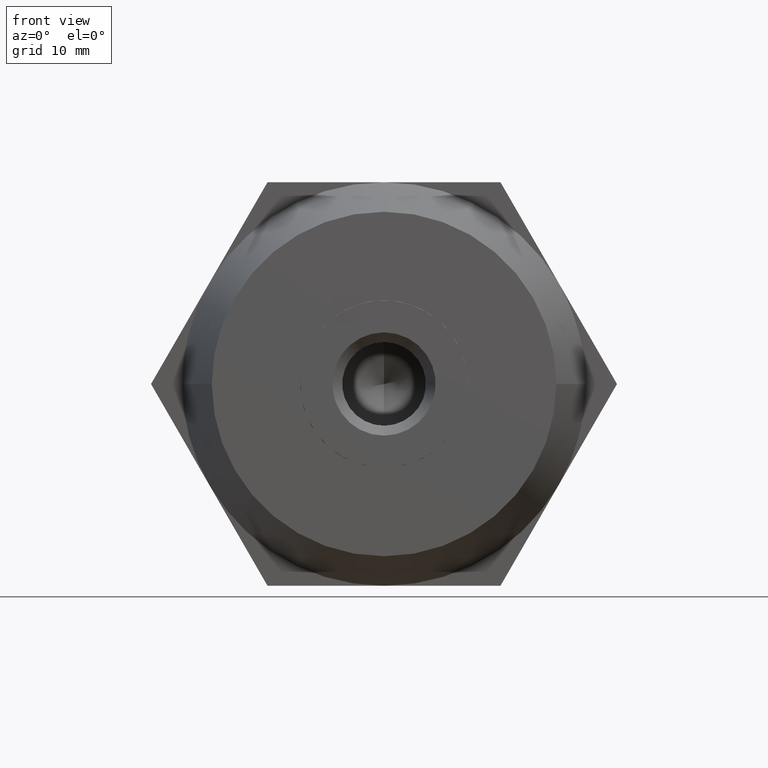
[diagram: clean part render]
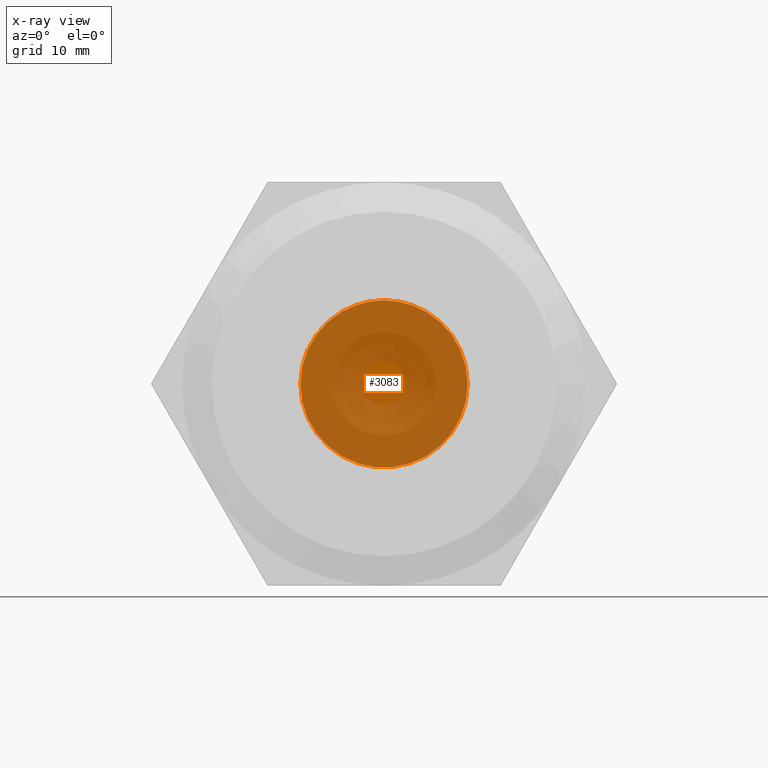
[diagram: x-ray — body ghosted, one internal face saturated and labeled with its STEP entity id]
A machine part, front view, then the same camera in x-ray: the body is ghosted and one INTERNAL B-rep face — a face not visible from any outside direction — is saturated and labeled: STEP entity #3083.
In plain terms, the highlighted planar face has unit normal (0, 1, 0).
Its self-contained STEP definition (entity closure, byte-faithful):
#68 = VERTEX_POINT ( 'NONE', #1546 ) ;
#72 = EDGE_CURVE ( 'NONE', #1734, #1182, #2598, .T. ) ;
#74 = EDGE_LOOP ( 'NONE', ( #2046, #2568, #418, #3281, #1142, #2258, #2290 ) ) ;
#89 = DIRECTION ( 'NONE',  ( 0.0000000000000000000, 0.0000000000000000000, 1.000000000000000000 ) ) ;
#208 = CARTESIAN_POINT ( 'NONE',  ( 0.0000000000000000000, 3.010000000000000200, 0.0000000000000000000 ) ) ;
#310 = AXIS2_PLACEMENT_3D ( 'NONE', #2403, #866, #568 ) ;
#418 = ORIENTED_EDGE ( 'NONE', *, *, #3067, .F. ) ;
#568 = DIRECTION ( 'NONE',  ( 1.776356839400250500E-015, 0.0000000000000000000, 1.000000000000000000 ) ) ;
#693 = AXIS2_PLACEMENT_3D ( 'NONE', #1931, #3149, #2254 ) ;
#713 = CARTESIAN_POINT ( 'NONE',  ( 0.0000000000000000000, 3.010000000000000200, 0.0000000000000000000 ) ) ;
#759 = AXIS2_PLACEMENT_3D ( 'NONE', #1353, #3478, #2271 ) ;
#828 = AXIS2_PLACEMENT_3D ( 'NONE', #713, #3759, #2326 ) ;
#839 = DIRECTION ( 'NONE',  ( -0.0000000000000000000, -1.000000000000000000, -0.0000000000000000000 ) ) ;
#855 = DIRECTION ( 'NONE',  ( -0.0000000000000000000, -1.000000000000000000, -0.0000000000000000000 ) ) ;
#866 = DIRECTION ( 'NONE',  ( -0.0000000000000000000, -1.000000000000000000, -0.0000000000000000000 ) ) ;
#995 = PLANE ( 'NONE',  #693 ) ;
#1022 = CIRCLE ( 'NONE', #1428, 8.500000000000000000 ) ;
#1142 = ORIENTED_EDGE ( 'NONE', *, *, #3455, .F. ) ;
#1182 = VERTEX_POINT ( 'NONE', #1921 ) ;
#1193 = EDGE_CURVE ( 'NONE', #1757, #1734, #1022, .T. ) ;
#1299 = FACE_OUTER_BOUND ( 'NONE', #74, .T. ) ;
#1353 = CARTESIAN_POINT ( 'NONE',  ( 0.0000000000000000000, 3.010000000000000200, 0.0000000000000000000 ) ) ;
#1428 = AXIS2_PLACEMENT_3D ( 'NONE', #3762, #1933, #89 ) ;
#1538 = CIRCLE ( 'NONE', #3621, 8.500000000000000000 ) ;
#1546 = CARTESIAN_POINT ( 'NONE',  ( 8.500000000000000000, 3.010000000000000200, -3.469446951953615000E-015 ) ) ;
#1622 = CARTESIAN_POINT ( 'NONE',  ( -4.249999999999935200, 3.009999999998969900, -7.361215932167759500 ) ) ;
#1695 = CIRCLE ( 'NONE', #310, 8.500000000000000000 ) ;
#1734 = VERTEX_POINT ( 'NONE', #2817 ) ;
#1757 = VERTEX_POINT ( 'NONE', #3398 ) ;
#1921 = CARTESIAN_POINT ( 'NONE',  ( -8.500000000000000000, 3.010000000000000200, 0.0000000000000000000 ) ) ;
#1931 = CARTESIAN_POINT ( 'NONE',  ( 0.0000000000000000000, 3.010000000000000200, 0.0000000000000000000 ) ) ;
#1933 = DIRECTION ( 'NONE',  ( -0.0000000000000000000, -1.000000000000000000, -0.0000000000000000000 ) ) ;
#2046 = ORIENTED_EDGE ( 'NONE', *, *, #2132, .F. ) ;
#2072 = CARTESIAN_POINT ( 'NONE',  ( 0.0000000000000000000, 3.010000000000000200, 0.0000000000000000000 ) ) ;
#2097 = VERTEX_POINT ( 'NONE', #3807 ) ;
#2116 = CIRCLE ( 'NONE', #828, 8.500000000000000000 ) ;
#2128 = VERTEX_POINT ( 'NONE', #2248 ) ;
#2132 = EDGE_CURVE ( 'NONE', #2097, #1757, #1538, .T. ) ;
#2163 = DIRECTION ( 'NONE',  ( 0.0000000000000000000, 0.0000000000000000000, 1.000000000000000000 ) ) ;
#2187 = AXIS2_PLACEMENT_3D ( 'NONE', #2437, #2752, #2163 ) ;
#2248 = CARTESIAN_POINT ( 'NONE',  ( 4.250000000000060400, 3.009999999998975300, -7.361215932167689300 ) ) ;
#2254 = DIRECTION ( 'NONE',  ( 0.0000000000000000000, 0.0000000000000000000, 1.000000000000000000 ) ) ;
#2258 = ORIENTED_EDGE ( 'NONE', *, *, #72, .F. ) ;
#2271 = DIRECTION ( 'NONE',  ( 1.776356839400250500E-015, 0.0000000000000000000, 1.000000000000000000 ) ) ;
#2290 = ORIENTED_EDGE ( 'NONE', *, *, #1193, .F. ) ;
#2318 = EDGE_CURVE ( 'NONE', #2374, #2128, #1695, .T. ) ;
#2326 = DIRECTION ( 'NONE',  ( -1.776356839400250500E-015, 0.0000000000000000000, 1.000000000000000000 ) ) ;
#2374 = VERTEX_POINT ( 'NONE', #1622 ) ;
#2403 = CARTESIAN_POINT ( 'NONE',  ( 0.0000000000000000000, 3.010000000000000200, 0.0000000000000000000 ) ) ;
#2437 = CARTESIAN_POINT ( 'NONE',  ( 0.0000000000000000000, 3.010000000000000200, 0.0000000000000000000 ) ) ;
#2482 = EDGE_CURVE ( 'NONE', #68, #2097, #3923, .T. ) ;
#2568 = ORIENTED_EDGE ( 'NONE', *, *, #2482, .F. ) ;
#2598 = CIRCLE ( 'NONE', #2187, 8.500000000000000000 ) ;
#2638 = DIRECTION ( 'NONE',  ( 1.776356839400250500E-015, 0.0000000000000000000, 1.000000000000000000 ) ) ;
#2752 = DIRECTION ( 'NONE',  ( -0.0000000000000000000, -1.000000000000000000, -0.0000000000000000000 ) ) ;
#2817 = CARTESIAN_POINT ( 'NONE',  ( -4.250000000000000000, 3.010000000000000200, 7.361215932167730200 ) ) ;
#3067 = EDGE_CURVE ( 'NONE', #2128, #68, #2116, .T. ) ;
#3083 = ADVANCED_FACE ( 'NONE', ( #1299 ), #995, .T. ) ;
#3149 = DIRECTION ( 'NONE',  ( 0.0000000000000000000, 1.000000000000000000, 0.0000000000000000000 ) ) ;
#3281 = ORIENTED_EDGE ( 'NONE', *, *, #2318, .F. ) ;
#3398 = CARTESIAN_POINT ( 'NONE',  ( 0.0000000000000000000, 3.010000000000000200, 8.500000000000000000 ) ) ;
#3455 = EDGE_CURVE ( 'NONE', #1182, #2374, #3540, .T. ) ;
#3478 = DIRECTION ( 'NONE',  ( -0.0000000000000000000, -1.000000000000000000, -0.0000000000000000000 ) ) ;
#3540 = CIRCLE ( 'NONE', #3874, 8.500000000000000000 ) ;
#3586 = DIRECTION ( 'NONE',  ( 0.0000000000000000000, 0.0000000000000000000, 1.000000000000000000 ) ) ;
#3621 = AXIS2_PLACEMENT_3D ( 'NONE', #208, #839, #2638 ) ;
#3759 = DIRECTION ( 'NONE',  ( -0.0000000000000000000, -1.000000000000000000, -0.0000000000000000000 ) ) ;
#3762 = CARTESIAN_POINT ( 'NONE',  ( 0.0000000000000000000, 3.010000000000000200, 0.0000000000000000000 ) ) ;
#3807 = CARTESIAN_POINT ( 'NONE',  ( 4.249999999999940500, 3.009999999998975300, 7.361215932167770100 ) ) ;
#3874 = AXIS2_PLACEMENT_3D ( 'NONE', #2072, #855, #3586 ) ;
#3923 = CIRCLE ( 'NONE', #759, 8.500000000000000000 ) ;